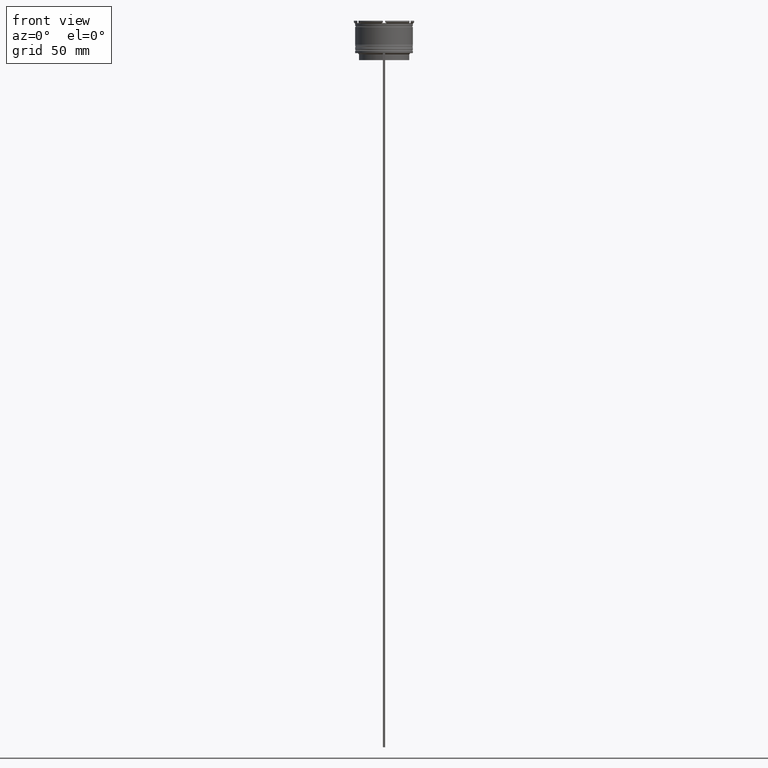
[diagram: clean part render]
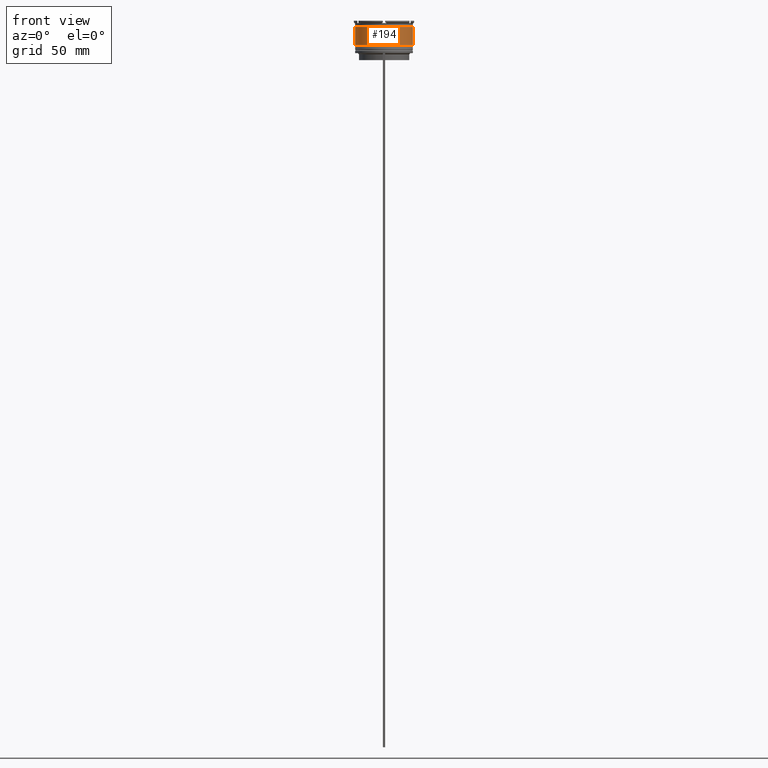
[diagram: same view with one face highlighted and labeled with its STEP entity id]
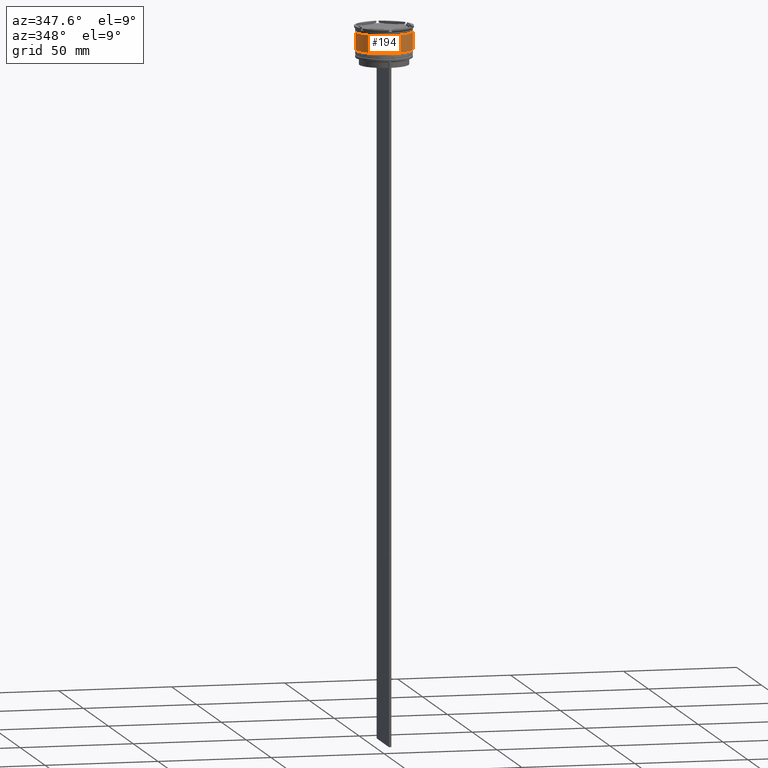
[diagram: same view with one face highlighted and labeled with its STEP entity id]
A machine part, front view. The second image highlights one B-rep face of the part: STEP entity #194.
A second angle (auxiliary view) of the same face is appended — the face is thin or edge-on in the first view.
In plain terms, the highlighted cylindrical surface (edge-blend (fillet) strip) has radius 12.5 mm, axis along (-0, -0, 1).
Its self-contained STEP definition (entity closure, byte-faithful):
#28 = DIRECTION ( 'NONE',  ( -0.000000000000000000, -0.000000000000000000, 1.000000000000000000 ) ) ;
#194 = ADVANCED_FACE ( 'NONE', ( #280 ), #1180, .T. ) ;
#280 = FACE_OUTER_BOUND ( 'NONE', #2142, .T. ) ;
#319 = AXIS2_PLACEMENT_3D ( 'NONE', #1662, #2748, #1173 ) ;
#327 = CARTESIAN_POINT ( 'NONE',  ( -12.50000000000000355, 1.530808498934191916E-15, -10.50000000000000178 ) ) ;
#393 = DIRECTION ( 'NONE',  ( -0.000000000000000000, -0.000000000000000000, 1.000000000000000000 ) ) ;
#484 = DIRECTION ( 'NONE',  ( -0.000000000000000000, -0.000000000000000000, 1.000000000000000000 ) ) ;
#540 = CARTESIAN_POINT ( 'NONE',  ( 12.50000000000000178, 0.000000000000000000, -10.50000000000000178 ) ) ;
#614 = LINE ( 'NONE', #1876, #2380 ) ;
#736 = AXIS2_PLACEMENT_3D ( 'NONE', #1595, #28, #2278 ) ;
#775 = ORIENTED_EDGE ( 'NONE', *, *, #1737, .F. ) ;
#890 = EDGE_CURVE ( 'NONE', #2125, #1848, #614, .T. ) ;
#956 = LINE ( 'NONE', #2712, #1186 ) ;
#975 = CIRCLE ( 'NONE', #736, 12.50000000000000178 ) ;
#1030 = AXIS2_PLACEMENT_3D ( 'NONE', #2038, #484, #2025 ) ;
#1173 = DIRECTION ( 'NONE',  ( 1.000000000000000000, 0.000000000000000000, 0.000000000000000000 ) ) ;
#1180 = CYLINDRICAL_SURFACE ( 'NONE', #1030, 12.50000000000000000 ) ;
#1186 = VECTOR ( 'NONE', #1445, 1000.000000000000000 ) ;
#1294 = EDGE_CURVE ( 'NONE', #2229, #2802, #956, .T. ) ;
#1445 = DIRECTION ( 'NONE',  ( -0.000000000000000000, -0.000000000000000000, 1.000000000000000000 ) ) ;
#1503 = ORIENTED_EDGE ( 'NONE', *, *, #1294, .F. ) ;
#1579 = CIRCLE ( 'NONE', #319, 12.49999999999999822 ) ;
#1595 = CARTESIAN_POINT ( 'NONE',  ( 0.000000000000000000, 0.000000000000000000, -10.50000000000000178 ) ) ;
#1662 = CARTESIAN_POINT ( 'NONE',  ( 0.000000000000000000, 0.000000000000000000, -2.699999999999999289 ) ) ;
#1737 = EDGE_CURVE ( 'NONE', #2802, #1848, #1579, .T. ) ;
#1828 = ORIENTED_EDGE ( 'NONE', *, *, #890, .T. ) ;
#1848 = VERTEX_POINT ( 'NONE', #2168 ) ;
#1876 = CARTESIAN_POINT ( 'NONE',  ( 12.50000000000000000, 0.000000000000000000, 0.000000000000000000 ) ) ;
#2025 = DIRECTION ( 'NONE',  ( 1.000000000000000000, 0.000000000000000000, 0.000000000000000000 ) ) ;
#2038 = CARTESIAN_POINT ( 'NONE',  ( 0.000000000000000000, 0.000000000000000000, 0.000000000000000000 ) ) ;
#2125 = VERTEX_POINT ( 'NONE', #540 ) ;
#2142 = EDGE_LOOP ( 'NONE', ( #1503, #2736, #1828, #775 ) ) ;
#2168 = CARTESIAN_POINT ( 'NONE',  ( 12.49999999999999822, 0.000000000000000000, -2.699999999999999289 ) ) ;
#2220 = CARTESIAN_POINT ( 'NONE',  ( -12.49999999999999822, 1.530808498934191324E-15, -2.699999999999999289 ) ) ;
#2229 = VERTEX_POINT ( 'NONE', #327 ) ;
#2278 = DIRECTION ( 'NONE',  ( 1.000000000000000000, 0.000000000000000000, 0.000000000000000000 ) ) ;
#2380 = VECTOR ( 'NONE', #393, 1000.000000000000000 ) ;
#2596 = EDGE_CURVE ( 'NONE', #2229, #2125, #975, .T. ) ;
#2712 = CARTESIAN_POINT ( 'NONE',  ( -12.50000000000000000, 1.530808498934191521E-15, 0.000000000000000000 ) ) ;
#2736 = ORIENTED_EDGE ( 'NONE', *, *, #2596, .T. ) ;
#2748 = DIRECTION ( 'NONE',  ( -0.000000000000000000, -0.000000000000000000, 1.000000000000000000 ) ) ;
#2802 = VERTEX_POINT ( 'NONE', #2220 ) ;